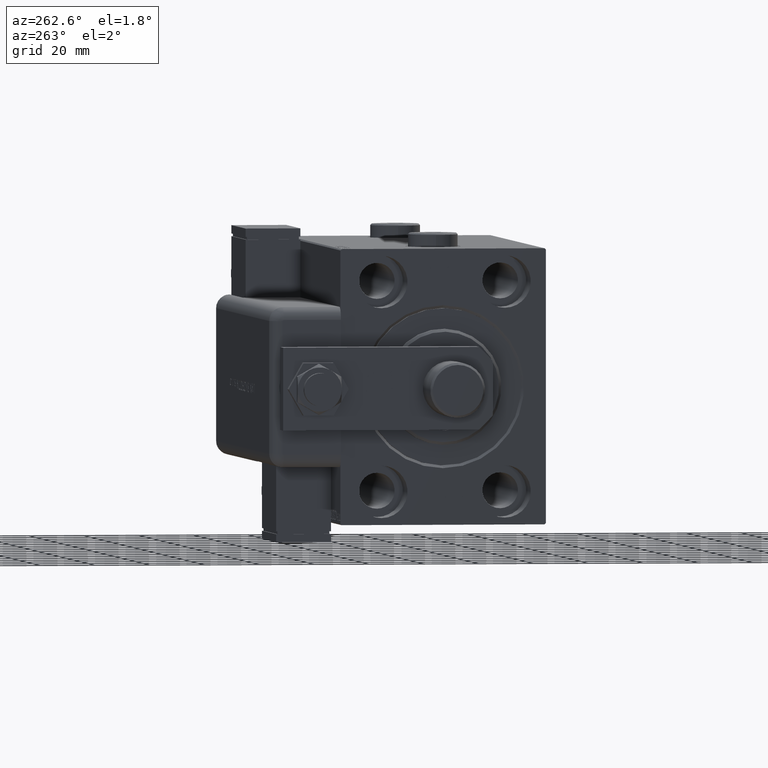
[diagram: clean part render]
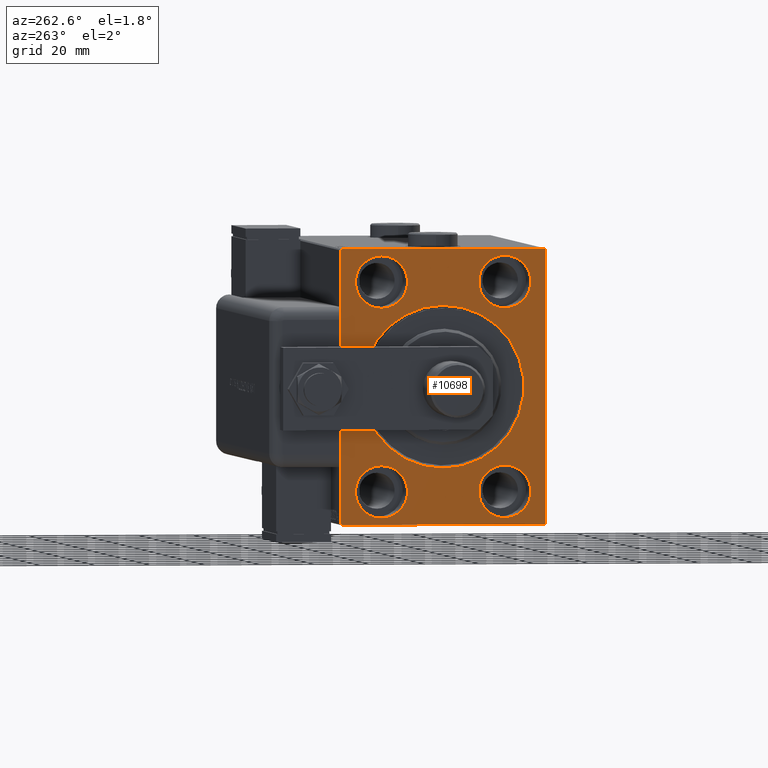
[diagram: same view with one face highlighted and labeled with its STEP entity id]
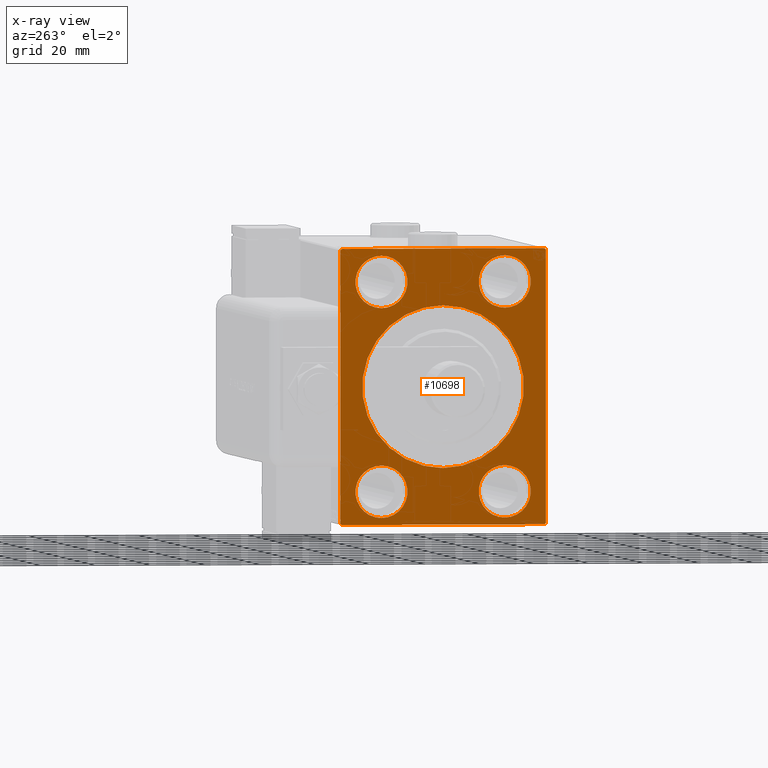
[diagram: x-ray of the same camera — body ghosted, the highlighted face saturated]
A machine part, auxiliary view. The second image highlights one B-rep face of the part: STEP entity #10698.
The next image is the same camera in x-ray: the body ghosted, the highlighted face saturated — about 0% of this face is hidden behind the body in this view.
In plain terms, the highlighted planar face has unit normal (1, 0, 0).
Its self-contained STEP definition (entity closure, byte-faithful):
#106 = EDGE_CURVE ( 'NONE', #22929, #46817, #12220, .T. ) ;
#498 = CARTESIAN_POINT ( 'NONE',  ( 0.000000000000000000, 36.99999999999999289, 50.00000000000000711 ) ) ;
#536 = AXIS2_PLACEMENT_3D ( 'NONE', #52071, #15317, #43029 ) ;
#568 = AXIS2_PLACEMENT_3D ( 'NONE', #15035, #35232, #29950 ) ;
#799 = DIRECTION ( 'NONE',  ( 0.000000000000000000, 0.000000000000000000, -1.000000000000000000 ) ) ;
#845 = ORIENTED_EDGE ( 'NONE', *, *, #11324, .F. ) ;
#1369 = ORIENTED_EDGE ( 'NONE', *, *, #25133, .T. ) ;
#1475 = EDGE_CURVE ( 'NONE', #38751, #28818, #52186, .T. ) ;
#1716 = DIRECTION ( 'NONE',  ( 1.000000000000000000, 0.000000000000000000, 0.000000000000000000 ) ) ;
#4273 = FACE_OUTER_BOUND ( 'NONE', #21426, .T. ) ;
#4918 = CARTESIAN_POINT ( 'NONE',  ( 0.000000000000000000, -37.50000000000000711, -50.00000000000000711 ) ) ;
#5194 = EDGE_CURVE ( 'NONE', #25902, #25996, #30444, .T. ) ;
#5198 = DIRECTION ( 'NONE',  ( 0.000000000000000000, 0.000000000000000000, 1.000000000000000000 ) ) ;
#5501 = VERTEX_POINT ( 'NONE', #41883 ) ;
#5717 = ORIENTED_EDGE ( 'NONE', *, *, #7455, .F. ) ;
#6305 = VERTEX_POINT ( 'NONE', #8551 ) ;
#7211 = DIRECTION ( 'NONE',  ( 1.000000000000000000, 0.000000000000000000, 0.000000000000000000 ) ) ;
#7425 = DIRECTION ( 'NONE',  ( -1.000000000000000000, 0.000000000000000000, 0.000000000000000000 ) ) ;
#7455 = EDGE_CURVE ( 'NONE', #16555, #7902, #19432, .T. ) ;
#7546 = AXIS2_PLACEMENT_3D ( 'NONE', #25815, #44194, #39829 ) ;
#7788 = CARTESIAN_POINT ( 'NONE',  ( 0.000000000000000000, 22.50000000000000355, 37.99999999999999289 ) ) ;
#7902 = VERTEX_POINT ( 'NONE', #43894 ) ;
#8519 = CIRCLE ( 'NONE', #568, 9.500000000000001776 ) ;
#8551 = CARTESIAN_POINT ( 'NONE',  ( 0.000000000000000000, 37.50000000000000711, -49.50000000000000000 ) ) ;
#9514 = ORIENTED_EDGE ( 'NONE', *, *, #24874, .T. ) ;
#9880 = CARTESIAN_POINT ( 'NONE',  ( 0.000000000000000000, 22.49999999999999645, -37.99999999999999289 ) ) ;
#10331 = CARTESIAN_POINT ( 'NONE',  ( 0.000000000000000000, 37.49999999999999289, 50.00000000000000711 ) ) ;
#10697 = VECTOR ( 'NONE', #29411, 1000.000000000000000 ) ;
#10698 = ADVANCED_FACE ( 'NONE', ( #28234, #32291, #57197, #56892, #14248, #4273 ), #23265, .F. ) ;
#11324 = EDGE_CURVE ( 'NONE', #22929, #23140, #53206, .T. ) ;
#11605 = EDGE_CURVE ( 'NONE', #6305, #54476, #49017, .T. ) ;
#11707 = DIRECTION ( 'NONE',  ( -1.000000000000000000, 0.000000000000000000, 0.000000000000000000 ) ) ;
#12022 = DIRECTION ( 'NONE',  ( -1.000000000000000000, 0.000000000000000000, 0.000000000000000000 ) ) ;
#12202 = CARTESIAN_POINT ( 'NONE',  ( 0.000000000000000000, 0.000000000000000000, 0.000000000000000000 ) ) ;
#12220 = LINE ( 'NONE', #31186, #25285 ) ;
#12507 = DIRECTION ( 'NONE',  ( 0.000000000000000000, 0.000000000000000000, -1.000000000000000000 ) ) ;
#13412 = ORIENTED_EDGE ( 'NONE', *, *, #32841, .F. ) ;
#13604 = DIRECTION ( 'NONE',  ( -0.000000000000000000, 0.7071067811865425767, -0.7071067811865525687 ) ) ;
#14248 = FACE_BOUND ( 'NONE', #53941, .T. ) ;
#14561 = CARTESIAN_POINT ( 'NONE',  ( 0.000000000000000000, 0.000000000000000000, 0.000000000000000000 ) ) ;
#14844 = LINE ( 'NONE', #498, #46905 ) ;
#15035 = CARTESIAN_POINT ( 'NONE',  ( 0.000000000000000000, -22.49999999999999645, 37.99999999999999289 ) ) ;
#15278 = CARTESIAN_POINT ( 'NONE',  ( 0.000000000000000000, -22.49999999999999645, 47.49999999999999289 ) ) ;
#15317 = DIRECTION ( 'NONE',  ( -1.000000000000000000, 0.000000000000000000, 0.000000000000000000 ) ) ;
#16377 = CARTESIAN_POINT ( 'NONE',  ( 0.000000000000000000, 22.50000000000000355, 37.99999999999999289 ) ) ;
#16555 = VERTEX_POINT ( 'NONE', #15278 ) ;
#16618 = VERTEX_POINT ( 'NONE', #20776 ) ;
#17096 = DIRECTION ( 'NONE',  ( 0.000000000000000000, 0.000000000000000000, 1.000000000000000000 ) ) ;
#17404 = CIRCLE ( 'NONE', #52214, 9.500000000000001776 ) ;
#17962 = CARTESIAN_POINT ( 'NONE',  ( 0.000000000000000000, -37.00000000000000711, 49.99999999999999289 ) ) ;
#18353 = EDGE_CURVE ( 'NONE', #6305, #29649, #19795, .T. ) ;
#19315 = ORIENTED_EDGE ( 'NONE', *, *, #54703, .F. ) ;
#19432 = CIRCLE ( 'NONE', #536, 9.500000000000001776 ) ;
#19460 = EDGE_LOOP ( 'NONE', ( #56096, #9514 ) ) ;
#19795 = LINE ( 'NONE', #38140, #39256 ) ;
#19862 = AXIS2_PLACEMENT_3D ( 'NONE', #52197, #11707, #54659 ) ;
#20134 = CARTESIAN_POINT ( 'NONE',  ( 0.000000000000000000, -22.50000000000000711, -47.49999999999999289 ) ) ;
#20195 = CARTESIAN_POINT ( 'NONE',  ( 0.000000000000000000, -37.50000000000000711, 49.99999999999999289 ) ) ;
#20752 = DIRECTION ( 'NONE',  ( 0.000000000000000000, 0.000000000000000000, 1.000000000000000000 ) ) ;
#20776 = CARTESIAN_POINT ( 'NONE',  ( 0.000000000000000000, 3.612708057484695548E-15, -29.50000000000002842 ) ) ;
#20867 = VECTOR ( 'NONE', #43199, 1000.000000000000000 ) ;
#21026 = EDGE_CURVE ( 'NONE', #49507, #46817, #43634, .T. ) ;
#21327 = AXIS2_PLACEMENT_3D ( 'NONE', #36684, #7425, #17096 ) ;
#21426 = EDGE_LOOP ( 'NONE', ( #845, #27169, #55565, #51859, #31177, #57133, #25049, #1369 ) ) ;
#21571 = CIRCLE ( 'NONE', #37476, 29.50000000000002842 ) ;
#22929 = VERTEX_POINT ( 'NONE', #45877 ) ;
#23140 = VERTEX_POINT ( 'NONE', #35221 ) ;
#23265 = PLANE ( 'NONE',  #56354 ) ;
#23783 = CIRCLE ( 'NONE', #19862, 9.500000000000001776 ) ;
#24206 = LINE ( 'NONE', #4918, #20867 ) ;
#24453 = CARTESIAN_POINT ( 'NONE',  ( 0.000000000000000000, 0.000000000000000000, 0.000000000000000000 ) ) ;
#24748 = ORIENTED_EDGE ( 'NONE', *, *, #57655, .F. ) ;
#24874 = EDGE_CURVE ( 'NONE', #16618, #49922, #21571, .T. ) ;
#24939 = DIRECTION ( 'NONE',  ( 0.000000000000000000, -1.000000000000000000, -1.850371707708594316E-16 ) ) ;
#25049 = ORIENTED_EDGE ( 'NONE', *, *, #30623, .F. ) ;
#25133 = EDGE_CURVE ( 'NONE', #58212, #23140, #57389, .T. ) ;
#25285 = VECTOR ( 'NONE', #51109, 1000.000000000000114 ) ;
#25286 = EDGE_CURVE ( 'NONE', #49922, #16618, #61380, .T. ) ;
#25815 = CARTESIAN_POINT ( 'NONE',  ( 0.000000000000000000, 22.49999999999999645, -37.99999999999999289 ) ) ;
#25902 = VERTEX_POINT ( 'NONE', #30183 ) ;
#25996 = VERTEX_POINT ( 'NONE', #61582 ) ;
#27169 = ORIENTED_EDGE ( 'NONE', *, *, #106, .T. ) ;
#28234 = FACE_BOUND ( 'NONE', #19460, .T. ) ;
#28818 = VERTEX_POINT ( 'NONE', #20134 ) ;
#29411 = DIRECTION ( 'NONE',  ( 0.000000000000000000, -1.387778780781445676E-16, 1.000000000000000000 ) ) ;
#29579 = VECTOR ( 'NONE', #33724, 1000.000000000000114 ) ;
#29649 = VERTEX_POINT ( 'NONE', #34763 ) ;
#29950 = DIRECTION ( 'NONE',  ( 0.000000000000000000, 0.000000000000000000, 1.000000000000000000 ) ) ;
#30183 = CARTESIAN_POINT ( 'NONE',  ( 0.000000000000000000, 22.49999999999999645, -47.49999999999999289 ) ) ;
#30444 = CIRCLE ( 'NONE', #7546, 9.500000000000001776 ) ;
#30623 = EDGE_CURVE ( 'NONE', #58212, #29649, #24206, .T. ) ;
#31005 = EDGE_LOOP ( 'NONE', ( #38508, #57386 ) ) ;
#31177 = ORIENTED_EDGE ( 'NONE', *, *, #11605, .F. ) ;
#31186 = CARTESIAN_POINT ( 'NONE',  ( 0.000000000000000000, -37.50000000000000711, 49.49999999999999289 ) ) ;
#32291 = FACE_BOUND ( 'NONE', #35037, .T. ) ;
#32526 = VECTOR ( 'NONE', #39168, 1000.000000000000000 ) ;
#32841 = EDGE_CURVE ( 'NONE', #28818, #38751, #23783, .T. ) ;
#33514 = EDGE_CURVE ( 'NONE', #47184, #5501, #40678, .T. ) ;
#33544 = DIRECTION ( 'NONE',  ( 1.000000000000000000, 0.000000000000000000, 0.000000000000000000 ) ) ;
#33724 = DIRECTION ( 'NONE',  ( -0.000000000000000000, -0.7071067811865474617, 0.7071067811865474617 ) ) ;
#34078 = ORIENTED_EDGE ( 'NONE', *, *, #5194, .F. ) ;
#34763 = CARTESIAN_POINT ( 'NONE',  ( 0.000000000000000000, 37.00000000000000711, -50.00000000000000000 ) ) ;
#35037 = EDGE_LOOP ( 'NONE', ( #24748, #34078 ) ) ;
#35221 = CARTESIAN_POINT ( 'NONE',  ( 0.000000000000000000, -37.50000000000000711, -49.50000000000003553 ) ) ;
#35232 = DIRECTION ( 'NONE',  ( -1.000000000000000000, 0.000000000000000000, 0.000000000000000000 ) ) ;
#36282 = CIRCLE ( 'NONE', #38281, 9.500000000000001776 ) ;
#36684 = CARTESIAN_POINT ( 'NONE',  ( 0.000000000000000000, -22.50000000000000711, -37.99999999999999289 ) ) ;
#37476 = AXIS2_PLACEMENT_3D ( 'NONE', #24453, #1716, #799 ) ;
#37492 = CARTESIAN_POINT ( 'NONE',  ( 0.000000000000000000, 36.99999999999999289, 50.00000000000000711 ) ) ;
#37689 = AXIS2_PLACEMENT_3D ( 'NONE', #7788, #55725, #55424 ) ;
#38140 = CARTESIAN_POINT ( 'NONE',  ( 0.000000000000000000, 37.50000000000000711, -49.50000000000000000 ) ) ;
#38281 = AXIS2_PLACEMENT_3D ( 'NONE', #9880, #47862, #5198 ) ;
#38508 = ORIENTED_EDGE ( 'NONE', *, *, #33514, .F. ) ;
#38693 = CARTESIAN_POINT ( 'NONE',  ( 0.000000000000000000, -37.00000000000003553, -50.00000000000000711 ) ) ;
#38751 = VERTEX_POINT ( 'NONE', #50115 ) ;
#39167 = EDGE_CURVE ( 'NONE', #49507, #54476, #14844, .T. ) ;
#39168 = DIRECTION ( 'NONE',  ( 0.000000000000000000, 0.000000000000000000, -1.000000000000000000 ) ) ;
#39256 = VECTOR ( 'NONE', #48122, 1000.000000000000114 ) ;
#39829 = DIRECTION ( 'NONE',  ( 0.000000000000000000, 0.000000000000000000, 1.000000000000000000 ) ) ;
#40678 = CIRCLE ( 'NONE', #37689, 9.500000000000001776 ) ;
#41524 = AXIS2_PLACEMENT_3D ( 'NONE', #12202, #7211, #12507 ) ;
#41883 = CARTESIAN_POINT ( 'NONE',  ( 0.000000000000000000, 22.50000000000000355, 28.49999999999998934 ) ) ;
#42320 = VECTOR ( 'NONE', #24939, 1000.000000000000000 ) ;
#43029 = DIRECTION ( 'NONE',  ( 0.000000000000000000, 0.000000000000000000, 1.000000000000000000 ) ) ;
#43199 = DIRECTION ( 'NONE',  ( 0.000000000000000000, 1.000000000000000000, 9.251858538542970348E-17 ) ) ;
#43502 = EDGE_LOOP ( 'NONE', ( #5717, #19315 ) ) ;
#43634 = LINE ( 'NONE', #10331, #42320 ) ;
#43894 = CARTESIAN_POINT ( 'NONE',  ( 0.000000000000000000, -22.49999999999999645, 28.49999999999998934 ) ) ;
#44194 = DIRECTION ( 'NONE',  ( -1.000000000000000000, 0.000000000000000000, 0.000000000000000000 ) ) ;
#45582 = CARTESIAN_POINT ( 'NONE',  ( 0.000000000000000000, 37.49999999999999289, 49.50000000000000000 ) ) ;
#45877 = CARTESIAN_POINT ( 'NONE',  ( 0.000000000000000000, -37.50000000000000711, 49.49999999999999289 ) ) ;
#46817 = VERTEX_POINT ( 'NONE', #17962 ) ;
#46905 = VECTOR ( 'NONE', #13604, 999.9999999999998863 ) ;
#47184 = VERTEX_POINT ( 'NONE', #57941 ) ;
#47862 = DIRECTION ( 'NONE',  ( -1.000000000000000000, 0.000000000000000000, 0.000000000000000000 ) ) ;
#48122 = DIRECTION ( 'NONE',  ( 0.000000000000000000, -0.7071067811865474617, -0.7071067811865474617 ) ) ;
#49017 = LINE ( 'NONE', #52794, #10697 ) ;
#49507 = VERTEX_POINT ( 'NONE', #37492 ) ;
#49922 = VERTEX_POINT ( 'NONE', #60071 ) ;
#50115 = CARTESIAN_POINT ( 'NONE',  ( 0.000000000000000000, -22.50000000000000711, -28.49999999999998934 ) ) ;
#51109 = DIRECTION ( 'NONE',  ( -0.000000000000000000, 0.7071067811865474617, 0.7071067811865474617 ) ) ;
#51859 = ORIENTED_EDGE ( 'NONE', *, *, #39167, .T. ) ;
#52071 = CARTESIAN_POINT ( 'NONE',  ( 0.000000000000000000, -22.49999999999999645, 37.99999999999999289 ) ) ;
#52186 = CIRCLE ( 'NONE', #21327, 9.500000000000001776 ) ;
#52197 = CARTESIAN_POINT ( 'NONE',  ( 0.000000000000000000, -22.50000000000000711, -37.99999999999999289 ) ) ;
#52214 = AXIS2_PLACEMENT_3D ( 'NONE', #16377, #12022, #20752 ) ;
#52553 = DIRECTION ( 'NONE',  ( 0.000000000000000000, 0.000000000000000000, -1.000000000000000000 ) ) ;
#52794 = CARTESIAN_POINT ( 'NONE',  ( 0.000000000000000000, 37.50000000000000711, -50.00000000000000000 ) ) ;
#53206 = LINE ( 'NONE', #20195, #32526 ) ;
#53941 = EDGE_LOOP ( 'NONE', ( #61354, #13412 ) ) ;
#54476 = VERTEX_POINT ( 'NONE', #45582 ) ;
#54659 = DIRECTION ( 'NONE',  ( 0.000000000000000000, 0.000000000000000000, 1.000000000000000000 ) ) ;
#54703 = EDGE_CURVE ( 'NONE', #7902, #16555, #8519, .T. ) ;
#55424 = DIRECTION ( 'NONE',  ( 0.000000000000000000, 0.000000000000000000, 1.000000000000000000 ) ) ;
#55565 = ORIENTED_EDGE ( 'NONE', *, *, #21026, .F. ) ;
#55725 = DIRECTION ( 'NONE',  ( -1.000000000000000000, 0.000000000000000000, 0.000000000000000000 ) ) ;
#56096 = ORIENTED_EDGE ( 'NONE', *, *, #25286, .T. ) ;
#56354 = AXIS2_PLACEMENT_3D ( 'NONE', #14561, #33544, #52553 ) ;
#56892 = FACE_BOUND ( 'NONE', #31005, .T. ) ;
#57133 = ORIENTED_EDGE ( 'NONE', *, *, #18353, .T. ) ;
#57197 = FACE_BOUND ( 'NONE', #43502, .T. ) ;
#57352 = CARTESIAN_POINT ( 'NONE',  ( 0.000000000000000000, -37.00000000000003553, -50.00000000000000711 ) ) ;
#57386 = ORIENTED_EDGE ( 'NONE', *, *, #57709, .F. ) ;
#57389 = LINE ( 'NONE', #38693, #29579 ) ;
#57655 = EDGE_CURVE ( 'NONE', #25996, #25902, #36282, .T. ) ;
#57709 = EDGE_CURVE ( 'NONE', #5501, #47184, #17404, .T. ) ;
#57941 = CARTESIAN_POINT ( 'NONE',  ( 0.000000000000000000, 22.50000000000000355, 47.49999999999999289 ) ) ;
#58212 = VERTEX_POINT ( 'NONE', #57352 ) ;
#60071 = CARTESIAN_POINT ( 'NONE',  ( 0.000000000000000000, 0.000000000000000000, 29.50000000000002842 ) ) ;
#61354 = ORIENTED_EDGE ( 'NONE', *, *, #1475, .F. ) ;
#61380 = CIRCLE ( 'NONE', #41524, 29.50000000000002842 ) ;
#61582 = CARTESIAN_POINT ( 'NONE',  ( 0.000000000000000000, 22.49999999999999645, -28.49999999999998934 ) ) ;